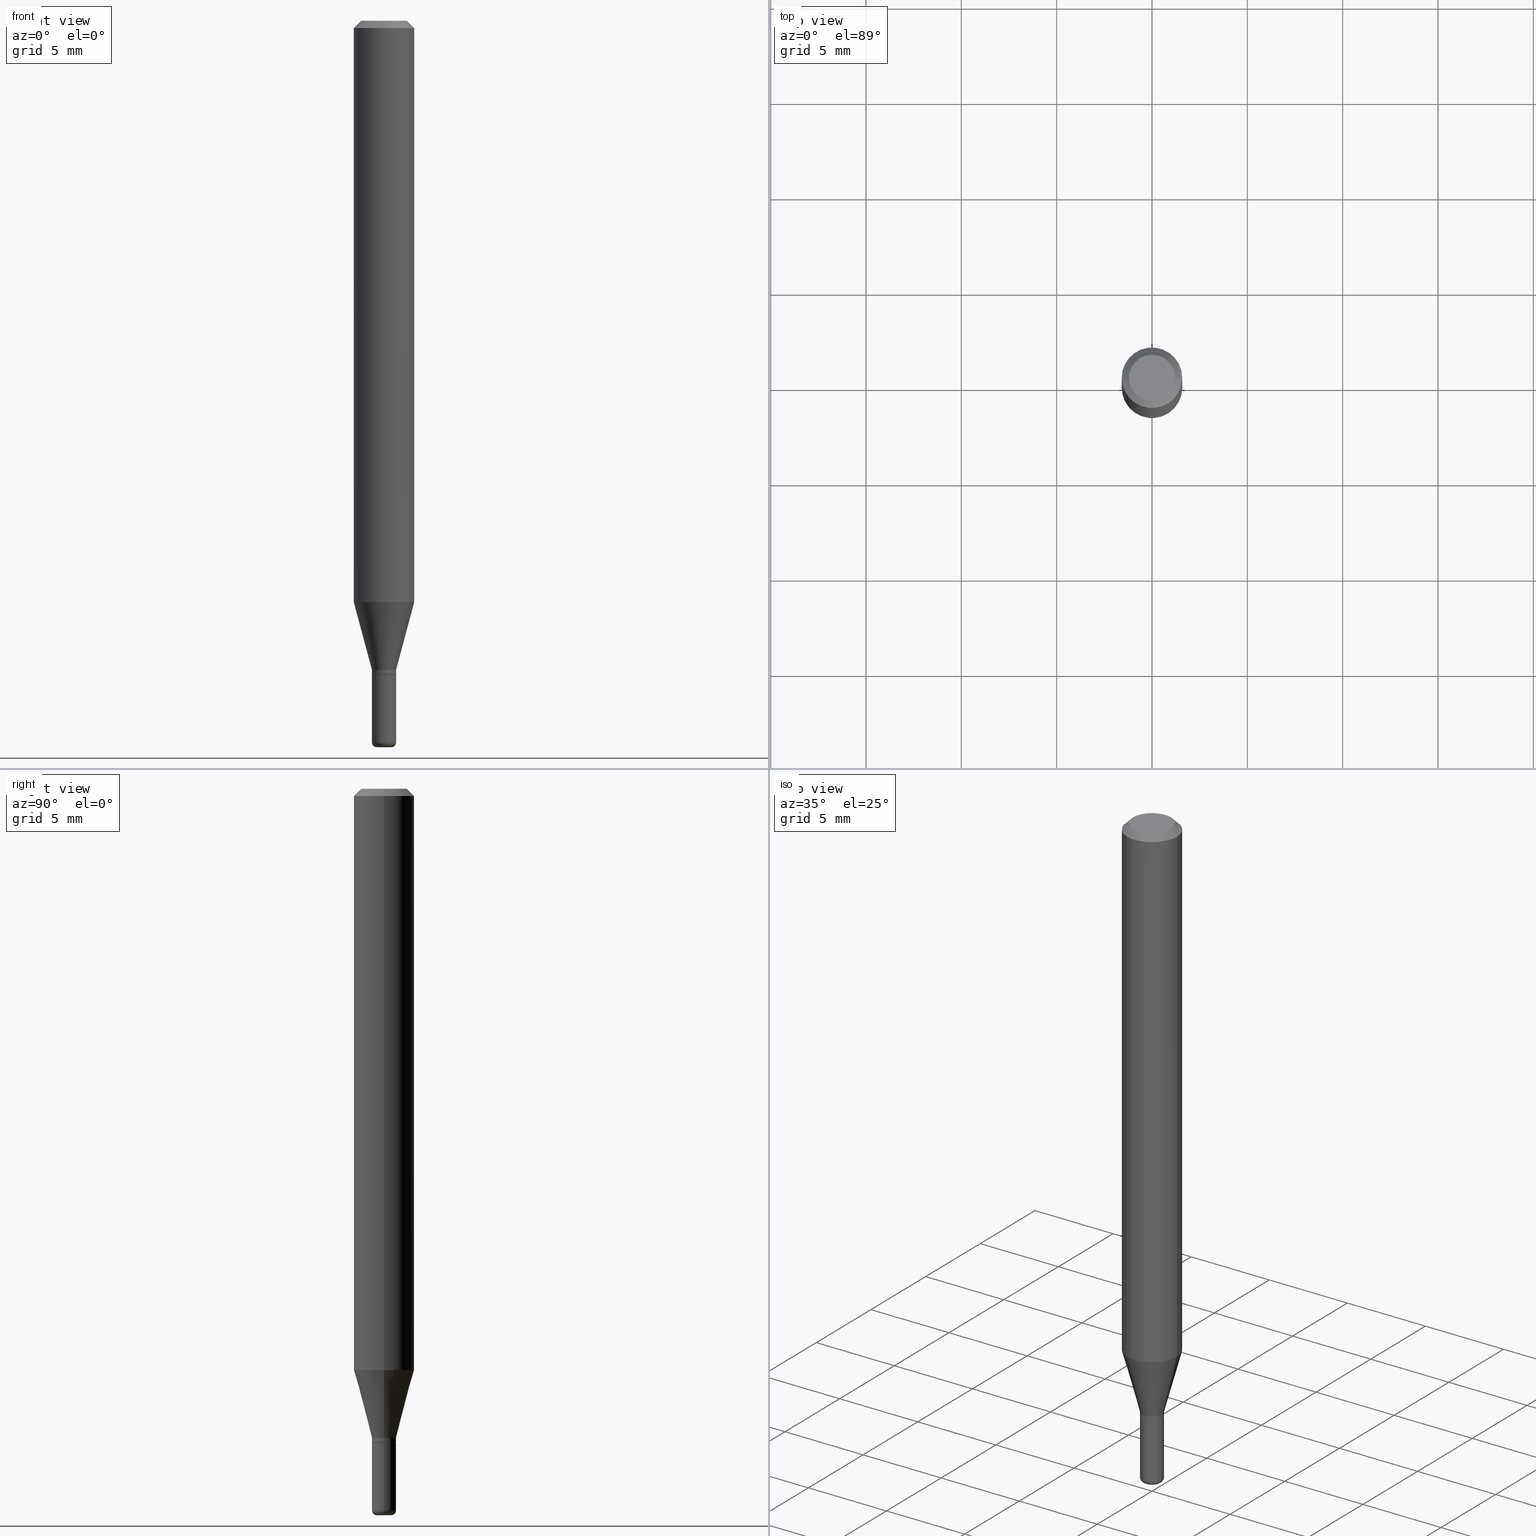
[diagram: canonical four-view strip — front | top / right | iso, engineering-drawing reading convention]
A machine part, canonical four-view strip (front | top / right | iso — engineering-drawing reading convention). The complete STEP part file that produces these views, byte-faithful:
ISO-10303-21;
HEADER;
FILE_DESCRIPTION (( 'STEP AP203' ),
    '1' );
FILE_NAME ('08524.STEP',
    '2024-02-29T19:41:41',
    ( '' ),
    ( '' ),
    'SwSTEP 2.0',
    'SolidWorks 2023',
    '' );
FILE_SCHEMA (( 'CONFIG_CONTROL_DESIGN' ));
ENDSEC;

DATA;
#1 = CARTESIAN_POINT ( 'NONE',  ( -0.04750000000000000749, 3.578768372314221353E-16, 2.731847993664239060E-16 ) ) ;
#2 = EDGE_CURVE ( 'NONE', #167, #292, #369, .T. ) ;
#3 = ORIENTED_EDGE ( 'NONE', *, *, #18, .F. ) ;
#4 = CYLINDRICAL_SURFACE ( 'NONE', #412, 0.02499999999999997363 ) ;
#5 = ORIENTED_EDGE ( 'NONE', *, *, #74, .F. ) ;
#6 = AXIS2_PLACEMENT_3D ( 'NONE', #389, #31, #128 ) ;
#7 = CONICAL_SURFACE ( 'NONE', #455, 0.02449999999999996972, 0.7853981633975507526 ) ;
#8 = CARTESIAN_POINT ( 'NONE',  ( 0.02499999999999997363, -1.745740669421564705E-16, 1.219044193948982547E-30 ) ) ;
#9 = CIRCLE ( 'NONE', #319, 0.01500000000000000465 ) ;
#10 = EDGE_LOOP ( 'NONE', ( #425, #225, #408, #271 ) ) ;
#11 = DIRECTION ( 'NONE',  ( -0.2588190451025205729, 5.211531920934544731E-15, 0.9659258262890682012 ) ) ;
#12 = ORIENTED_EDGE ( 'NONE', *, *, #25, .F. ) ;
#13 =( LENGTH_UNIT ( ) NAMED_UNIT ( * ) SI_UNIT ( $, .METRE. ) );
#14 = CARTESIAN_POINT ( 'NONE',  ( -6.680649051745406845E-45, 9.538196290434862081E-31, 2.731847993664263218E-16 ) ) ;
#15 = CARTESIAN_POINT ( 'NONE',  ( 3.301382888349935078E-29, -4.713499807438246596E-15, -1.350000000000000089 ) ) ;
#16 = CC_DESIGN_SECURITY_CLASSIFICATION ( #205, ( #314 ) ) ;
#17 = ORIENTED_EDGE ( 'NONE', *, *, #41, .T. ) ;
#18 = EDGE_CURVE ( 'NONE', #147, #410, #360, .T. ) ;
#19 = DIRECTION ( 'NONE',  ( 2.445468806185136597E-29, -3.491481338843145583E-15, -1.000000000000000000 ) ) ;
#20 = DIRECTION ( 'NONE',  ( -2.445468806185136877E-29, 3.491481338843145188E-15, 1.000000000000000000 ) ) ;
#21 = EDGE_CURVE ( 'NONE', #147, #363, #498, .T. ) ;
#22 = FACE_OUTER_BOUND ( 'NONE', #220, .T. ) ;
#23 = DIRECTION ( 'NONE',  ( 2.445468806185136597E-29, -3.491481338843145583E-15, -1.000000000000000000 ) ) ;
#24 = EDGE_CURVE ( 'NONE', #292, #185, #58, .T. ) ;
#25 = EDGE_CURVE ( 'NONE', #137, #326, #464, .T. ) ;
#26 = DATE_AND_TIME ( #239, #162 ) ;
#27 = AXIS2_PLACEMENT_3D ( 'NONE', #247, #97, #285 ) ;
#28 = ORIENTED_EDGE ( 'NONE', *, *, #21, .F. ) ;
#29 = CONICAL_SURFACE ( 'NONE', #345, 0.02499999999999996322, 0.2617993877991492968 ) ;
#30 = APPROVAL_DATE_TIME ( #198, #399 ) ;
#31 = DIRECTION ( 'NONE',  ( 2.438088387897960049E-29, -3.491481338843145188E-15, -1.000000000000000000 ) ) ;
#32 = COORDINATED_UNIVERSAL_TIME_OFFSET ( 5, 0, .BEHIND. ) ;
#33 = DIRECTION ( 'NONE',  ( -2.445468806185136597E-29, 3.491481338843145583E-15, 1.000000000000000000 ) ) ;
#34 = APPLICATION_CONTEXT ( 'configuration controlled 3d designs of mechanical parts and assemblies' ) ;
#35 = CONICAL_SURFACE ( 'NONE', #51, 0.02449999999999996972, 0.7853981633975507526 ) ;
#36 = AXIS2_PLACEMENT_3D ( 'NONE', #400, #43, #362 ) ;
#37 = CALENDAR_DATE ( 2024, 29, 2 ) ;
#38 = CARTESIAN_POINT ( 'NONE',  ( 3.301382888349935078E-29, -4.713499807438246596E-15, -1.350000000000000089 ) ) ;
#39 = MANIFOLD_SOLID_BREP ( 'Body-Move/Copy2[2]', #172 ) ;
#40 = CARTESIAN_POINT ( 'NONE',  ( 3.316907271900976589E-16, 0.04750000000000000749, -2.925296391183627249E-17 ) ) ;
#41 = EDGE_CURVE ( 'NONE', #127, #212, #423, .T. ) ;
#42 = ADVANCED_FACE ( 'NONE', ( #66 ), #161, .T. ) ;
#43 = DIRECTION ( 'NONE',  ( -2.445468806185136597E-29, 3.491481338843145583E-15, 1.000000000000000000 ) ) ;
#44 = ORIENTED_EDGE ( 'NONE', *, *, #467, .F. ) ;
#45 = VECTOR ( 'NONE', #263, 39.37007874015748143 ) ;
#46 = CARTESIAN_POINT ( 'NONE',  ( -0.06250000000000000000, -3.745856318565706082E-15, -1.200048094716167135 ) ) ;
#47 = ORIENTED_EDGE ( 'NONE', *, *, #264, .F. ) ;
#48 = CARTESIAN_POINT ( 'NONE',  ( 0.02499999999999996322, -4.853159060991972403E-15, -1.340000000000000080 ) ) ;
#49 = CARTESIAN_POINT ( 'NONE',  ( -0.02499999999999996669, 1.776356839400248098E-16, -1.229733772563724904E-30 ) ) ;
#50 = ORIENTED_EDGE ( 'NONE', *, *, #117, .T. ) ;
#51 = AXIS2_PLACEMENT_3D ( 'NONE', #38, #437, #81 ) ;
#52 = CIRCLE ( 'NONE', #379, 0.02499999999999994588 ) ;
#53 = CARTESIAN_POINT ( 'NONE',  ( 3.276928200288083533E-29, -4.678584994049815735E-15, -1.340000000000000080 ) ) ;
#54 = AXIS2_PLACEMENT_3D ( 'NONE', #318, #150, #350 ) ;
#55 = EDGE_LOOP ( 'NONE', ( #12, #458, #50, #479 ) ) ;
#56 = MANIFOLD_SOLID_BREP ( 'Body-Move/Copy2[1]', #216 ) ;
#57 = CARTESIAN_POINT ( 'NONE',  ( 3.301382888349935078E-29, -4.713499807438246596E-15, -1.350000000000000089 ) ) ;
#58 = LINE ( 'NONE', #465, #214 ) ;
#59 = FACE_OUTER_BOUND ( 'NONE', #306, .T. ) ;
#60 = EDGE_CURVE ( 'NONE', #292, #167, #499, .T. ) ;
#61 = ORIENTED_EDGE ( 'NONE', *, *, #182, .T. ) ;
#62 = DIRECTION ( 'NONE',  ( 1.000000000000000000, -6.982962677686265133E-15, 0.000000000000000000 ) ) ;
#63 = DIRECTION ( 'NONE',  ( -2.445468806185136597E-29, 3.491481338843145583E-15, 1.000000000000000000 ) ) ;
#64 = DIRECTION ( 'NONE',  ( 1.000000000000000000, -6.982962677686254878E-15, 0.000000000000000000 ) ) ;
#65 = EDGE_CURVE ( 'NONE', #185, #371, #195, .T. ) ;
#66 = FACE_OUTER_BOUND ( 'NONE', #55, .T. ) ;
#67 = FACE_OUTER_BOUND ( 'NONE', #169, .T. ) ;
#68 = CARTESIAN_POINT ( 'NONE',  ( 2.934680181550293043E-29, -4.189945528415768698E-15, -1.200048094716167135 ) ) ;
#69 = EDGE_CURVE ( 'NONE', #311, #487, #72, .T. ) ;
#70 = PERSON_AND_ORGANIZATION ( #183, #73 ) ;
#71 = AXIS2_PLACEMENT_3D ( 'NONE', #472, #115, #505 ) ;
#72 = LINE ( 'NONE', #119, #244 ) ;
#73 = ORGANIZATION ( 'UNSPECIFIED', 'UNSPECIFIED', '' ) ;
#74 = EDGE_CURVE ( 'NONE', #494, #141, #9, .T. ) ;
#75 = SECURITY_CLASSIFICATION_LEVEL ( 'unclassified' ) ;
#76 = CARTESIAN_POINT ( 'NONE',  ( 3.643748521215853910E-29, -5.202307194876288105E-15, -1.490000000000000213 ) ) ;
#77 = PERSON_AND_ORGANIZATION ( #183, #73 ) ;
#78 = ADVANCED_FACE ( 'NONE', ( #352 ), #238, .T. ) ;
#79 = DIRECTION ( 'NONE',  ( 1.000000000000000000, -6.982962677686267499E-15, 4.876176775795935793E-29 ) ) ;
#80 = DIRECTION ( 'NONE',  ( 0.000000000000000000, 0.000000000000000000, 1.000000000000000000 ) ) ;
#81 = DIRECTION ( 'NONE',  ( 1.000000000000000000, -6.982962677686282488E-15, 0.000000000000000000 ) ) ;
#82 = VECTOR ( 'NONE', #20, 39.37007874015748143 ) ;
#83 = AXIS2_PLACEMENT_3D ( 'NONE', #53, #132, #165 ) ;
#84 = AXIS2_PLACEMENT_3D ( 'NONE', #76, #431, #120 ) ;
#85 = DATE_AND_TIME ( #502, #361 ) ;
#86 = DESIGN_CONTEXT ( 'detailed design', #321, 'design' ) ;
#87 = FACE_OUTER_BOUND ( 'NONE', #248, .T. ) ;
#88 = DIRECTION ( 'NONE',  ( 1.000000000000000000, -6.982962677686265133E-15, 0.000000000000000000 ) ) ;
#89 = DIRECTION ( 'NONE',  ( -2.445468806185136877E-29, 3.491481338843145188E-15, 1.000000000000000000 ) ) ;
#90 = EDGE_LOOP ( 'NONE', ( #133, #177 ) ) ;
#91 = CIRCLE ( 'NONE', #508, 0.02499999999999996322 ) ;
#92 = DIRECTION ( 'NONE',  ( -2.445468806185136597E-29, 3.491481338843145583E-15, 1.000000000000000000 ) ) ;
#93 = ORIENTED_EDGE ( 'NONE', *, *, #273, .F. ) ;
#94 = DIRECTION ( 'NONE',  ( -6.982962677686266711E-15, -1.000000000000000000, 3.491481338843145583E-15 ) ) ;
#95 = ADVANCED_FACE ( 'NONE', ( #191 ), #316, .F. ) ;
#96 = ORIENTED_EDGE ( 'NONE', *, *, #435, .F. ) ;
#97 = DIRECTION ( 'NONE',  ( -2.445468806185136597E-29, 3.491481338843145583E-15, 1.000000000000000000 ) ) ;
#98 = ORIENTED_EDGE ( 'NONE', *, *, #357, .F. ) ;
#99 = DIRECTION ( 'NONE',  ( 1.000000000000000000, -6.982962677686269866E-15, 4.883557194083113462E-29 ) ) ;
#100 = DIRECTION ( 'NONE',  ( 1.000000000000000000, -6.982962677686262766E-15, 0.000000000000000000 ) ) ;
#101 = DIRECTION ( 'NONE',  ( 1.000000000000000000, -6.982962677686265922E-15, 0.000000000000000000 ) ) ;
#102 = DIRECTION ( 'NONE',  ( -1.000000000000000000, 6.982962677686266711E-15, 0.000000000000000000 ) ) ;
#103 = CC_DESIGN_PERSON_AND_ORGANIZATION_ASSIGNMENT ( #310, #113, ( #314 ) ) ;
#104 = CARTESIAN_POINT ( 'NONE',  ( -0.01500000000000000465, -5.077656054418483766E-15, -1.500000000000000222 ) ) ;
#105 = DIRECTION ( 'NONE',  ( -2.445468806185136597E-29, 3.491481338843145583E-15, 1.000000000000000000 ) ) ;
#106 = ADVANCED_FACE ( 'NONE', ( #193 ), #308, .T. ) ;
#107 = AXIS2_PLACEMENT_3D ( 'NONE', #356, #476, #313 ) ;
#108 =( NAMED_UNIT ( * ) SI_UNIT ( $, .STERADIAN. ) SOLID_ANGLE_UNIT ( ) );
#109 = CIRCLE ( 'NONE', #130, 0.04750000000000000749 ) ;
#110 = ORIENTED_EDGE ( 'NONE', *, *, #131, .T. ) ;
#111 = VERTEX_POINT ( 'NONE', #354 ) ;
#112 = DIRECTION ( 'NONE',  ( -2.445468806185136597E-29, 3.491481338843145583E-15, 1.000000000000000000 ) ) ;
#113 = PERSON_AND_ORGANIZATION_ROLE ( 'design_supplier' ) ;
#114 = CIRCLE ( 'NONE', #71, 0.009999999999999944697 ) ;
#115 = DIRECTION ( 'NONE',  ( 7.105427357601001859E-15, 1.000000000000000000, -3.491481338843145583E-15 ) ) ;
#116 = CIRCLE ( 'NONE', #241, 0.02500000000000000139 ) ;
#117 = EDGE_CURVE ( 'NONE', #371, #185, #328, .T. ) ;
#118 = APPROVAL_DATE_TIME ( #26, #383 ) ;
#119 = CARTESIAN_POINT ( 'NONE',  ( -0.02499999999999997363, 1.776356839400248591E-16, -1.229733772563725079E-30 ) ) ;
#120 = DIRECTION ( 'NONE',  ( 1.000000000000000000, -6.982962677686269866E-15, 4.883557194083113462E-29 ) ) ;
#121 = COORDINATED_UNIVERSAL_TIME_OFFSET ( 5, 0, .BEHIND. ) ;
#122 = CARTESIAN_POINT ( 'NONE',  ( -0.06250000000000000000, -1.677069664399144681E-15, -0.01499999999999970281 ) ) ;
#123 = VECTOR ( 'NONE', #320, 39.37007874015748143 ) ;
#124 = FACE_OUTER_BOUND ( 'NONE', #456, .T. ) ;
#125 = PRODUCT_RELATED_PRODUCT_CATEGORY ( 'detail', '', ( #440 ) ) ;
#126 = CARTESIAN_POINT ( 'NONE',  ( 0.06250000000000000000, -4.364351673553916694E-16, 3.047610484872459871E-30 ) ) ;
#127 = VERTEX_POINT ( 'NONE', #153 ) ;
#128 = DIRECTION ( 'NONE',  ( -1.000000000000000000, 6.982962677686265922E-15, -4.876176775795935793E-29 ) ) ;
#129 = ORIENTED_EDGE ( 'NONE', *, *, #353, .F. ) ;
#130 = AXIS2_PLACEMENT_3D ( 'NONE', #411, #484, #208 ) ;
#131 = EDGE_CURVE ( 'NONE', #494, #311, #114, .T. ) ;
#132 = DIRECTION ( 'NONE',  ( -2.445468806185136597E-29, 3.491481338843145583E-15, 1.000000000000000000 ) ) ;
#133 = ORIENTED_EDGE ( 'NONE', *, *, #407, .T. ) ;
#134 = DIRECTION ( 'NONE',  ( 1.000000000000000000, -6.982962677686274599E-15, 0.000000000000000000 ) ) ;
#135 = ORIENTED_EDGE ( 'NONE', *, *, #24, .T. ) ;
#136 = FACE_OUTER_BOUND ( 'NONE', #288, .T. ) ;
#137 = VERTEX_POINT ( 'NONE', #197 ) ;
#138 = AXIS2_PLACEMENT_3D ( 'NONE', #451, #325, #256 ) ;
#139 = APPROVAL_PERSON_ORGANIZATION ( #70, #194, #187 ) ;
#140 = LINE ( 'NONE', #491, #291 ) ;
#141 = VERTEX_POINT ( 'NONE', #474 ) ;
#142 = DIRECTION ( 'NONE',  ( 1.000000000000000000, -6.982962677686266711E-15, 4.876176775795935793E-29 ) ) ;
#143 = ORIENTED_EDGE ( 'NONE', *, *, #304, .T. ) ;
#144 = LENGTH_MEASURE_WITH_UNIT ( LENGTH_MEASURE( 0.02539999999999999897 ), #13 );
#145 = ORIENTED_EDGE ( 'NONE', *, *, #117, .F. ) ;
#146 = AXIS2_PLACEMENT_3D ( 'NONE', #376, #459, #99 ) ;
#147 = VERTEX_POINT ( 'NONE', #160 ) ;
#148 = PERSON_AND_ORGANIZATION ( #183, #73 ) ;
#149 = ORIENTED_EDGE ( 'NONE', *, *, #336, .T. ) ;
#150 = DIRECTION ( 'NONE',  ( -2.445468806185136597E-29, 3.491481338843145583E-15, 1.000000000000000000 ) ) ;
#151 = PERSON_AND_ORGANIZATION ( #183, #73 ) ;
#152 = LOCAL_TIME ( 14, 41, 41.00000000000000000, #275 ) ;
#153 = CARTESIAN_POINT ( 'NONE',  ( 0.02499999999999997363, -4.886328133710982549E-15, -1.349500000000000144 ) ) ;
#154 = ADVANCED_FACE ( 'NONE', ( #280 ), #35, .T. ) ;
#155 = DIRECTION ( 'NONE',  ( 1.000000000000000000, -6.982962677686265922E-15, 4.876176775795935793E-29 ) ) ;
#156 = COORDINATED_UNIVERSAL_TIME_OFFSET ( 5, 0, .BEHIND. ) ;
#157 = ADVANCED_BREP_SHAPE_REPRESENTATION ( '08524', ( #56, #39, #250 ), #282 ) ;
#158 = FACE_OUTER_BOUND ( 'NONE', #419, .T. ) ;
#159 = ADVANCED_FACE ( 'NONE', ( #158 ), #513, .T. ) ;
#160 = CARTESIAN_POINT ( 'NONE',  ( -0.02449999999999996972, -4.536767610002911089E-15, -1.350000000000000089 ) ) ;
#161 = CONICAL_SURFACE ( 'NONE', #203, 0.06250000000000000000, 0.7853981633974488341 ) ;
#162 = LOCAL_TIME ( 14, 41, 41.00000000000000000, #121 ) ;
#163 = CARTESIAN_POINT ( 'NONE',  ( -0.02499999999999994588, -4.780267817217242146E-15, -1.490000000000000213 ) ) ;
#164 = ORIENTED_EDGE ( 'NONE', *, *, #355, .T. ) ;
#165 = DIRECTION ( 'NONE',  ( 1.000000000000000000, -6.982962677686265133E-15, 0.000000000000000000 ) ) ;
#166 = PRODUCT_DEFINITION_SHAPE ( 'NONE', 'NONE',  #489 ) ;
#167 = VERTEX_POINT ( 'NONE', #199 ) ;
#168 = DIRECTION ( 'NONE',  ( -2.445468806185136597E-29, 3.491481338843145583E-15, 1.000000000000000000 ) ) ;
#169 = EDGE_LOOP ( 'NONE', ( #44, #378, #324, #500 ) ) ;
#170 = AXIS2_PLACEMENT_3D ( 'NONE', #40, #201, #359 ) ;
#171 = AXIS2_PLACEMENT_3D ( 'NONE', #57, #180, #265 ) ;
#172 = CLOSED_SHELL ( 'NONE', ( #78, #447, #42, #394, #190, #377, #480, #358, #200, #270, #154, #159 ) ) ;
#173 = CARTESIAN_POINT ( 'NONE',  ( -0.02499999999999996322, -4.123402814337748307E-15, -1.340000000000000080 ) ) ;
#174 = CARTESIAN_POINT ( 'NONE',  ( 3.668203209277704895E-29, -5.237222008264718177E-15, -1.500000000000000222 ) ) ;
#175 = ORIENTED_EDGE ( 'NONE', *, *, #435, .T. ) ;
#176 = LINE ( 'NONE', #453, #252 ) ;
#177 = ORIENTED_EDGE ( 'NONE', *, *, #243, .T. ) ;
#178 = FACE_OUTER_BOUND ( 'NONE', #294, .T. ) ;
#179 = ORIENTED_EDGE ( 'NONE', *, *, #355, .F. ) ;
#180 = DIRECTION ( 'NONE',  ( -2.445468806185136597E-29, 3.491481338843145583E-15, 1.000000000000000000 ) ) ;
#181 = ORIENTED_EDGE ( 'NONE', *, *, #65, .F. ) ;
#182 = EDGE_CURVE ( 'NONE', #296, #311, #441, .T. ) ;
#183 = PERSON ( 'UNSPECIFIED', 'UNSPECIFIED', 'UNSPECIFIED', ('UNSPECIFIED'), ('UNSPECIFIED'), ('UNSPECIFIED') ) ;
#184 = DIRECTION ( 'NONE',  ( -2.445468806185136597E-29, 3.491481338843145583E-15, 1.000000000000000000 ) ) ;
#185 = VERTEX_POINT ( 'NONE', #122 ) ;
#186 = AXIS2_PLACEMENT_3D ( 'NONE', #290, #94, #134 ) ;
#187 = APPROVAL_ROLE ( '' ) ;
#188 = CIRCLE ( 'NONE', #171, 0.02449999999999996972 ) ;
#189 = ORIENTED_EDGE ( 'NONE', *, *, #273, .T. ) ;
#190 = ADVANCED_FACE ( 'NONE', ( #283 ), #461, .T. ) ;
#191 = FACE_OUTER_BOUND ( 'NONE', #503, .T. ) ;
#192 = DATE_AND_TIME ( #388, #223 ) ;
#193 = FACE_OUTER_BOUND ( 'NONE', #416, .T. ) ;
#194 = APPROVAL ( #473, 'UNSPECIFIED' ) ;
#195 = CIRCLE ( 'NONE', #438, 0.06250000000000000000 ) ;
#196 = AXIS2_PLACEMENT_3D ( 'NONE', #174, #184, #101 ) ;
#197 = CARTESIAN_POINT ( 'NONE',  ( 0.04750000000000000749, -4.035134999187568762E-16, 2.731847993664288856E-16 ) ) ;
#198 = DATE_AND_TIME ( #37, #267 ) ;
#199 = CARTESIAN_POINT ( 'NONE',  ( 0.06250000000000000000, -4.626380695771160368E-15, -1.200048094716167135 ) ) ;
#200 = ADVANCED_FACE ( 'NONE', ( #87 ), #398, .F. ) ;
#201 = DIRECTION ( 'NONE',  ( 2.438088387897960049E-29, -3.491481338843145188E-15, -1.000000000000000000 ) ) ;
#202 = LINE ( 'NONE', #48, #274 ) ;
#203 = AXIS2_PLACEMENT_3D ( 'NONE', #382, #23, #102 ) ;
#204 = ORIENTED_EDGE ( 'NONE', *, *, #304, .F. ) ;
#205 = SECURITY_CLASSIFICATION ( '', '', #75 ) ;
#206 = CARTESIAN_POINT ( 'NONE',  ( 3.643748521215853910E-29, -5.202307194876288105E-15, -1.490000000000000213 ) ) ;
#207 = ORIENTED_EDGE ( 'NONE', *, *, #243, .F. ) ;
#208 = DIRECTION ( 'NONE',  ( 1.000000000000000000, -6.982962677686266711E-15, 4.852736867747365086E-29 ) ) ;
#209 = EDGE_LOOP ( 'NONE', ( #367, #482, #149, #207 ) ) ;
#210 = LINE ( 'NONE', #49, #258 ) ;
#211 = ADVANCED_FACE ( 'NONE', ( #272 ), #427, .F. ) ;
#212 = VERTEX_POINT ( 'NONE', #330 ) ;
#213 = ADVANCED_FACE ( 'NONE', ( #366 ), #4, .T. ) ;
#214 = VECTOR ( 'NONE', #348, 39.37007874015748143 ) ;
#215 = VECTOR ( 'NONE', #477, 39.37007874015748143 ) ;
#216 = CLOSED_SHELL ( 'NONE', ( #106, #213, #211, #259, #495, #95 ) ) ;
#217 = LINE ( 'NONE', #293, #123 ) ;
#218 = ORIENTED_EDGE ( 'NONE', *, *, #24, .F. ) ;
#219 = CYLINDRICAL_SURFACE ( 'NONE', #446, 0.06250000000000000000 ) ;
#220 = EDGE_LOOP ( 'NONE', ( #331, #329, #93, #204 ) ) ;
#221 = DIRECTION ( 'NONE',  ( -2.445468806185136597E-29, 3.491481338843145583E-15, 1.000000000000000000 ) ) ;
#222 = ORIENTED_EDGE ( 'NONE', *, *, #301, .T. ) ;
#223 = LOCAL_TIME ( 14, 41, 41.00000000000000000, #156 ) ;
#224 = EDGE_CURVE ( 'NONE', #141, #296, #344, .T. ) ;
#225 = ORIENTED_EDGE ( 'NONE', *, *, #264, .T. ) ;
#226 = CARTESIAN_POINT ( 'NONE',  ( 0.06250000000000000000, -4.888073874380378612E-16, -0.01499999999999970281 ) ) ;
#227 = ORIENTED_EDGE ( 'NONE', *, *, #224, .F. ) ;
#228 = CARTESIAN_POINT ( 'NONE',  ( 0.000000000000000000, 0.000000000000000000, 0.000000000000000000 ) ) ;
#229 = ORIENTED_EDGE ( 'NONE', *, *, #69, .T. ) ;
#230 = EDGE_CURVE ( 'NONE', #363, #268, #210, .T. ) ;
#231 = AXIS2_PLACEMENT_3D ( 'NONE', #309, #420, #340 ) ;
#232 = PERSON_AND_ORGANIZATION_ROLE ( 'creator' ) ;
#233 = AXIS2_PLACEMENT_3D ( 'NONE', #496, #19, #418 ) ;
#234 = CARTESIAN_POINT ( 'NONE',  ( 0.000000000000000000, 0.000000000000000000, 0.000000000000000000 ) ) ;
#235 = APPROVAL_ROLE ( '' ) ;
#236 = DIRECTION ( 'NONE',  ( -2.445468806185136877E-29, 3.491481338843145188E-15, 1.000000000000000000 ) ) ;
#237 = DATE_TIME_ROLE ( 'classification_date' ) ;
#238 = CYLINDRICAL_SURFACE ( 'NONE', #284, 0.02499999999999996669 ) ;
#239 = CALENDAR_DATE ( 2024, 29, 2 ) ;
#240 = AXIS2_PLACEMENT_3D ( 'NONE', #442, #277, #246 ) ;
#241 = AXIS2_PLACEMENT_3D ( 'NONE', #488, #384, #64 ) ;
#242 = DIRECTION ( 'NONE',  ( 1.000000000000000000, -6.982962677686267499E-15, 4.876176775795935793E-29 ) ) ;
#243 = EDGE_CURVE ( 'NONE', #487, #111, #514, .T. ) ;
#244 = VECTOR ( 'NONE', #236, 39.37007874015748143 ) ;
#245 = DATE_TIME_ROLE ( 'creation_date' ) ;
#246 = DIRECTION ( 'NONE',  ( 1.000000000000000000, -6.982962677686265133E-15, 0.000000000000000000 ) ) ;
#247 = CARTESIAN_POINT ( 'NONE',  ( 3.301382888349935078E-29, -4.713499807438246596E-15, -1.350000000000000089 ) ) ;
#248 = EDGE_LOOP ( 'NONE', ( #518, #297 ) ) ;
#249 = DIRECTION ( 'NONE',  ( -2.445468806185136877E-29, 3.491481338843145188E-15, 1.000000000000000000 ) ) ;
#250 = AXIS2_PLACEMENT_3D ( 'NONE', #504, #80, #351 ) ;
#251 = EDGE_LOOP ( 'NONE', ( #47, #222, #300, #485 ) ) ;
#252 = VECTOR ( 'NONE', #262, 39.37007874015748143 ) ;
#253 = DIRECTION ( 'NONE',  ( 1.000000000000000000, -6.982962677686261977E-15, 0.000000000000000000 ) ) ;
#254 = PLANE ( 'NONE',  #138 ) ;
#255 = ORIENTED_EDGE ( 'NONE', *, *, #224, .T. ) ;
#256 = DIRECTION ( 'NONE',  ( 1.000000000000000000, -6.982962677686265922E-15, 4.876176775795935793E-29 ) ) ;
#257 = ORIENTED_EDGE ( 'NONE', *, *, #353, .T. ) ;
#258 = VECTOR ( 'NONE', #249, 39.37007874015748143 ) ;
#259 = ADVANCED_FACE ( 'NONE', ( #448 ), #295, .T. ) ;
#260 = CARTESIAN_POINT ( 'NONE',  ( 0.02449999999999996972, -4.884582393041560256E-15, -1.350000000000000089 ) ) ;
#261 = CARTESIAN_POINT ( 'NONE',  ( -0.02449999999999996972, -4.539416837177022290E-15, -1.350000000000000089 ) ) ;
#262 = DIRECTION ( 'NONE',  ( 0.7071067811865479058, -7.319954787623257623E-15, -0.7071067811865471286 ) ) ;
#263 = DIRECTION ( 'NONE',  ( -0.7071067811866199593, 7.493145998870616062E-15, 0.7071067811864750752 ) ) ;
#264 = EDGE_CURVE ( 'NONE', #268, #292, #372, .T. ) ;
#265 = DIRECTION ( 'NONE',  ( 1.000000000000000000, -6.982962677686282488E-15, 0.000000000000000000 ) ) ;
#266 = ORIENTED_EDGE ( 'NONE', *, *, #18, .T. ) ;
#267 = LOCAL_TIME ( 14, 41, 41.00000000000000000, #32 ) ;
#268 = VERTEX_POINT ( 'NONE', #173 ) ;
#269 = CYLINDRICAL_SURFACE ( 'NONE', #463, 0.06250000000000000000 ) ;
#270 = ADVANCED_FACE ( 'NONE', ( #124 ), #254, .F. ) ;
#271 = ORIENTED_EDGE ( 'NONE', *, *, #286, .F. ) ;
#272 = FACE_OUTER_BOUND ( 'NONE', #90, .T. ) ;
#273 = EDGE_CURVE ( 'NONE', #127, #363, #428, .T. ) ;
#274 = VECTOR ( 'NONE', #403, 39.37007874015748854 ) ;
#275 = COORDINATED_UNIVERSAL_TIME_OFFSET ( 5, 0, .BEHIND. ) ;
#276 = CIRCLE ( 'NONE', #36, 0.02499999999999997363 ) ;
#277 = DIRECTION ( 'NONE',  ( -2.445468806185136597E-29, 3.491481338843145583E-15, 1.000000000000000000 ) ) ;
#278 = UNCERTAINTY_MEASURE_WITH_UNIT (LENGTH_MEASURE( 1.000000000000000082E-05 ), #422, 'distance_accuracy_value', 'NONE');
#279 = DIRECTION ( 'NONE',  ( -2.445468806185136597E-29, 3.491481338843145583E-15, 1.000000000000000000 ) ) ;
#280 = FACE_OUTER_BOUND ( 'NONE', #414, .T. ) ;
#281 = COORDINATED_UNIVERSAL_TIME_OFFSET ( 5, 0, .BEHIND. ) ;
#282 =( GEOMETRIC_REPRESENTATION_CONTEXT ( 3 ) GLOBAL_UNCERTAINTY_ASSIGNED_CONTEXT ( ( #278 ) ) GLOBAL_UNIT_ASSIGNED_CONTEXT ( ( #422, #305, #108 ) ) REPRESENTATION_CONTEXT ( 'NONE', 'WORKASPACE' ) );
#283 = FACE_OUTER_BOUND ( 'NONE', #10, .T. ) ;
#284 = AXIS2_PLACEMENT_3D ( 'NONE', #317, #33, #79 ) ;
#285 = DIRECTION ( 'NONE',  ( 1.000000000000000000, -6.982962677686254878E-15, 0.000000000000000000 ) ) ;
#286 = EDGE_CURVE ( 'NONE', #212, #167, #202, .T. ) ;
#287 = LINE ( 'NONE', #8, #215 ) ;
#288 = EDGE_LOOP ( 'NONE', ( #218, #343, #164, #181 ) ) ;
#289 = EDGE_CURVE ( 'NONE', #326, #137, #109, .T. ) ;
#290 = CARTESIAN_POINT ( 'NONE',  ( 0.01500000000000000291, -5.307051635041582264E-15, -1.490000000000000213 ) ) ;
#291 = VECTOR ( 'NONE', #299, 39.37007874015748143 ) ;
#292 = VERTEX_POINT ( 'NONE', #46 ) ;
#293 = CARTESIAN_POINT ( 'NONE',  ( 0.02449999999999996972, -4.884582393041560256E-15, -1.350000000000000089 ) ) ;
#294 = EDGE_LOOP ( 'NONE', ( #445, #135, #145, #179 ) ) ;
#295 = CYLINDRICAL_SURFACE ( 'NONE', #298, 0.02499999999999997363 ) ;
#296 = VERTEX_POINT ( 'NONE', #478 ) ;
#297 = ORIENTED_EDGE ( 'NONE', *, *, #25, .T. ) ;
#298 = AXIS2_PLACEMENT_3D ( 'NONE', #327, #444, #409 ) ;
#299 = DIRECTION ( 'NONE',  ( -0.7071067811865479058, 2.468850131082261005E-15, -0.7071067811865471286 ) ) ;
#300 = ORIENTED_EDGE ( 'NONE', *, *, #286, .T. ) ;
#301 = EDGE_CURVE ( 'NONE', #268, #212, #307, .T. ) ;
#302 = CARTESIAN_POINT ( 'NONE',  ( -0.02500000000000000139, -4.780267817217242146E-15, -1.350000000000000089 ) ) ;
#303 = CARTESIAN_POINT ( 'NONE',  ( 2.934680181550293043E-29, -4.189945528415768698E-15, -1.200048094716167135 ) ) ;
#304 = EDGE_CURVE ( 'NONE', #410, #127, #217, .T. ) ;
#305 =( NAMED_UNIT ( * ) PLANE_ANGLE_UNIT ( ) SI_UNIT ( $, .RADIAN. ) );
#306 = EDGE_LOOP ( 'NONE', ( #405, #375, #255, #98 ) ) ;
#307 = CIRCLE ( 'NONE', #83, 0.02499999999999996322 ) ;
#308 = TOROIDAL_SURFACE ( 'NONE', #84, 0.01500000000000000291, 0.009999999999999946432 ) ;
#309 = CARTESIAN_POINT ( 'NONE',  ( 3.301382888349935078E-29, -4.713499807438246596E-15, -1.350000000000000089 ) ) ;
#310 = PERSON_AND_ORGANIZATION ( #183, #73 ) ;
#311 = VERTEX_POINT ( 'NONE', #163 ) ;
#312 = APPLICATION_PROTOCOL_DEFINITION ( 'international standard', 'config_control_design', 1994, #321 ) ;
#313 = DIRECTION ( 'NONE',  ( 1.000000000000000000, -6.982962677686269866E-15, 0.000000000000000000 ) ) ;
#314 = PRODUCT_DEFINITION_FORMATION_WITH_SPECIFIED_SOURCE ( 'ANY', '', #440, .NOT_KNOWN. ) ;
#315 = PERSON_AND_ORGANIZATION_ROLE ( 'classification_officer' ) ;
#316 = PLANE ( 'NONE',  #335 ) ;
#317 = CARTESIAN_POINT ( 'NONE',  ( 0.000000000000000000, 0.000000000000000000, 0.000000000000000000 ) ) ;
#318 = CARTESIAN_POINT ( 'NONE',  ( 3.668203209277632395E-31, -5.237222008264614861E-17, -0.01499999999999970281 ) ) ;
#319 = AXIS2_PLACEMENT_3D ( 'NONE', #510, #393, #391 ) ;
#320 = DIRECTION ( 'NONE',  ( 0.7071067811866199593, -2.468850131083015945E-15, 0.7071067811864750752 ) ) ;
#321 = APPLICATION_CONTEXT ( 'configuration controlled 3d designs of mechanical parts and assemblies' ) ;
#322 = CARTESIAN_POINT ( 'NONE',  ( -0.02499999999999996322, -4.500949310109790531E-15, -1.340000000000000080 ) ) ;
#323 = CC_DESIGN_PERSON_AND_ORGANIZATION_ASSIGNMENT ( #77, #436, ( #489 ) ) ;
#324 = ORIENTED_EDGE ( 'NONE', *, *, #417, .T. ) ;
#325 = DIRECTION ( 'NONE',  ( -2.438088387897960049E-29, 3.491481338843145188E-15, 1.000000000000000000 ) ) ;
#326 = VERTEX_POINT ( 'NONE', #1 ) ;
#327 = CARTESIAN_POINT ( 'NONE',  ( 0.000000000000000000, 0.000000000000000000, 0.000000000000000000 ) ) ;
#328 = CIRCLE ( 'NONE', #54, 0.06250000000000000000 ) ;
#329 = ORIENTED_EDGE ( 'NONE', *, *, #21, .T. ) ;
#330 = CARTESIAN_POINT ( 'NONE',  ( 0.02499999999999996322, -4.853159060991972403E-15, -1.340000000000000080 ) ) ;
#331 = ORIENTED_EDGE ( 'NONE', *, *, #517, .T. ) ;
#332 = DIRECTION ( 'NONE',  ( -2.445468806185136597E-29, 3.491481338843145583E-15, 1.000000000000000000 ) ) ;
#333 = CARTESIAN_POINT ( 'NONE',  ( -0.02499999999999997363, -4.534118382828799888E-15, -1.349500000000000144 ) ) ;
#334 = DIRECTION ( 'NONE',  ( 1.000000000000000000, -6.982962677686266711E-15, 4.852736867747365086E-29 ) ) ;
#335 = AXIS2_PLACEMENT_3D ( 'NONE', #507, #466, #155 ) ;
#336 = EDGE_CURVE ( 'NONE', #296, #111, #287, .T. ) ;
#337 = DIRECTION ( 'NONE',  ( -2.445468806185136597E-29, 3.491481338843145583E-15, 1.000000000000000000 ) ) ;
#338 = ORIENTED_EDGE ( 'NONE', *, *, #407, .F. ) ;
#339 = CC_DESIGN_DATE_AND_TIME_ASSIGNMENT ( #192, #237, ( #205 ) ) ;
#340 = DIRECTION ( 'NONE',  ( 1.000000000000000000, -6.982962677686282488E-15, 0.000000000000000000 ) ) ;
#341 = EDGE_CURVE ( 'NONE', #212, #268, #91, .T. ) ;
#342 = DIRECTION ( 'NONE',  ( 1.000000000000000000, -6.982962677686282488E-15, 0.000000000000000000 ) ) ;
#343 = ORIENTED_EDGE ( 'NONE', *, *, #60, .T. ) ;
#344 = CIRCLE ( 'NONE', #186, 0.009999999999999944697 ) ;
#345 = AXIS2_PLACEMENT_3D ( 'NONE', #424, #221, #62 ) ;
#346 = CC_DESIGN_PERSON_AND_ORGANIZATION_ASSIGNMENT ( #430, #506, ( #440 ) ) ;
#347 = AXIS2_PLACEMENT_3D ( 'NONE', #234, #112, #242 ) ;
#348 = DIRECTION ( 'NONE',  ( -2.445468806185136877E-29, 3.491481338843145188E-15, 1.000000000000000000 ) ) ;
#349 = CALENDAR_DATE ( 2024, 29, 2 ) ;
#350 = DIRECTION ( 'NONE',  ( 1.000000000000000000, -6.982962677686266711E-15, 0.000000000000000000 ) ) ;
#351 = DIRECTION ( 'NONE',  ( 1.000000000000000000, 0.000000000000000000, 0.000000000000000000 ) ) ;
#352 = FACE_OUTER_BOUND ( 'NONE', #385, .T. ) ;
#353 = EDGE_CURVE ( 'NONE', #363, #127, #276, .T. ) ;
#354 = CARTESIAN_POINT ( 'NONE',  ( 0.02500000000000000139, -4.888073874380403263E-15, -1.350000000000000089 ) ) ;
#355 = EDGE_CURVE ( 'NONE', #167, #371, #516, .T. ) ;
#356 = CARTESIAN_POINT ( 'NONE',  ( 3.643748521215853910E-29, -5.202307194876288105E-15, -1.490000000000000213 ) ) ;
#357 = EDGE_CURVE ( 'NONE', #311, #296, #52, .T. ) ;
#358 = ADVANCED_FACE ( 'NONE', ( #67 ), #395, .T. ) ;
#359 = DIRECTION ( 'NONE',  ( -1.000000000000000000, 6.982962677686265922E-15, -4.876176775795935793E-29 ) ) ;
#360 = CIRCLE ( 'NONE', #231, 0.02449999999999996972 ) ;
#361 = LOCAL_TIME ( 14, 41, 41.00000000000000000, #281 ) ;
#362 = DIRECTION ( 'NONE',  ( 1.000000000000000000, -6.982962677686261977E-15, 0.000000000000000000 ) ) ;
#363 = VERTEX_POINT ( 'NONE', #333 ) ;
#364 = DIRECTION ( 'NONE',  ( -2.445468806185136597E-29, 3.491481338843145583E-15, 1.000000000000000000 ) ) ;
#365 = ORIENTED_EDGE ( 'NONE', *, *, #182, .F. ) ;
#366 = FACE_OUTER_BOUND ( 'NONE', #497, .T. ) ;
#367 = ORIENTED_EDGE ( 'NONE', *, *, #69, .F. ) ;
#368 = CARTESIAN_POINT ( 'NONE',  ( 3.300160153946842277E-29, -4.711754066768825092E-15, -1.349500000000000144 ) ) ;
#369 = CIRCLE ( 'NONE', #501, 0.06250000000000000000 ) ;
#370 = CIRCLE ( 'NONE', #196, 0.01500000000000000465 ) ;
#371 = VERTEX_POINT ( 'NONE', #226 ) ;
#372 = LINE ( 'NONE', #322, #386 ) ;
#373 = ORIENTED_EDGE ( 'NONE', *, *, #336, .F. ) ;
#374 = DIRECTION ( 'NONE',  ( 1.000000000000000000, -6.982962677686266711E-15, 4.876176775795935793E-29 ) ) ;
#375 = ORIENTED_EDGE ( 'NONE', *, *, #74, .T. ) ;
#376 = CARTESIAN_POINT ( 'NONE',  ( 3.643748521215853910E-29, -5.202307194876288105E-15, -1.490000000000000213 ) ) ;
#377 = ADVANCED_FACE ( 'NONE', ( #457 ), #29, .T. ) ;
#378 = ORIENTED_EDGE ( 'NONE', *, *, #289, .F. ) ;
#379 = AXIS2_PLACEMENT_3D ( 'NONE', #206, #364, #481 ) ;
#380 = DIRECTION ( 'NONE',  ( -2.445468806185136597E-29, 3.491481338843145583E-15, 1.000000000000000000 ) ) ;
#381 = CARTESIAN_POINT ( 'NONE',  ( 0.02499999999999996669, -1.745740669421564459E-16, 1.219044193948982372E-30 ) ) ;
#382 = CARTESIAN_POINT ( 'NONE',  ( 3.668203209277632395E-31, -5.237222008264614861E-17, -0.01499999999999970281 ) ) ;
#383 = APPROVAL ( #439, 'UNSPECIFIED' ) ;
#384 = DIRECTION ( 'NONE',  ( -2.445468806185136597E-29, 3.491481338843145583E-15, 1.000000000000000000 ) ) ;
#385 = EDGE_LOOP ( 'NONE', ( #189, #462, #452, #460 ) ) ;
#386 = VECTOR ( 'NONE', #11, 39.37007874015748854 ) ;
#387 = APPROVAL_PERSON_ORGANIZATION ( #151, #383, #390 ) ;
#388 = CALENDAR_DATE ( 2024, 29, 2 ) ;
#389 = CARTESIAN_POINT ( 'NONE',  ( 1.745740669421896767E-16, 0.02499999999999528988, -1.350000000000000089 ) ) ;
#390 = APPROVAL_ROLE ( '' ) ;
#391 = DIRECTION ( 'NONE',  ( 1.000000000000000000, -6.982962677686265922E-15, 0.000000000000000000 ) ) ;
#392 = APPROVAL_STATUS ( 'not_yet_approved' ) ;
#393 = DIRECTION ( 'NONE',  ( -2.445468806185136597E-29, 3.491481338843145583E-15, 1.000000000000000000 ) ) ;
#394 = ADVANCED_FACE ( 'NONE', ( #178 ), #269, .T. ) ;
#395 = CONICAL_SURFACE ( 'NONE', #233, 0.06250000000000000000, 0.7853981633974488341 ) ;
#396 = APPLICATION_PROTOCOL_DEFINITION ( 'international standard', 'config_control_design', 1994, #34 ) ;
#397 = DIRECTION ( 'NONE',  ( -2.445468806185136597E-29, 3.491481338843145583E-15, 1.000000000000000000 ) ) ;
#398 = PLANE ( 'NONE',  #170 ) ;
#399 = APPROVAL ( #392, 'UNSPECIFIED' ) ;
#400 = CARTESIAN_POINT ( 'NONE',  ( 3.300160153946842277E-29, -4.711754066768825092E-15, -1.349500000000000144 ) ) ;
#401 = ORIENTED_EDGE ( 'NONE', *, *, #230, .F. ) ;
#402 = APPROVAL_PERSON_ORGANIZATION ( #509, #399, #235 ) ;
#403 = DIRECTION ( 'NONE',  ( 0.2588190451025205729, 1.565188264969627490E-15, 0.9659258262890682012 ) ) ;
#404 = DIMENSIONAL_EXPONENTS ( 1.000000000000000000, 0.000000000000000000, 0.000000000000000000, 0.000000000000000000, 0.000000000000000000, 0.000000000000000000, 0.000000000000000000 ) ;
#405 = ORIENTED_EDGE ( 'NONE', *, *, #131, .F. ) ;
#406 = DIRECTION ( 'NONE',  ( 1.000000000000000000, -6.982962677686265922E-15, 4.876176775795935232E-29 ) ) ;
#407 = EDGE_CURVE ( 'NONE', #111, #487, #116, .T. ) ;
#408 = ORIENTED_EDGE ( 'NONE', *, *, #2, .F. ) ;
#409 = DIRECTION ( 'NONE',  ( 1.000000000000000000, -6.982962677686265922E-15, 4.876176775795935232E-29 ) ) ;
#410 = VERTEX_POINT ( 'NONE', #260 ) ;
#411 = CARTESIAN_POINT ( 'NONE',  ( -6.680649051745406845E-45, 9.538196290434862081E-31, 2.731847993664263218E-16 ) ) ;
#412 = AXIS2_PLACEMENT_3D ( 'NONE', #486, #168, #406 ) ;
#413 = TOROIDAL_SURFACE ( 'NONE', #146, 0.01500000000000000291, 0.009999999999999946432 ) ;
#414 = EDGE_LOOP ( 'NONE', ( #28, #266, #143, #129 ) ) ;
#415 = CARTESIAN_POINT ( 'NONE',  ( 0.000000000000000000, 0.000000000000000000, 0.000000000000000000 ) ) ;
#416 = EDGE_LOOP ( 'NONE', ( #175, #110, #365, #227 ) ) ;
#417 = EDGE_CURVE ( 'NONE', #326, #185, #140, .T. ) ;
#418 = DIRECTION ( 'NONE',  ( -1.000000000000000000, 6.982962677686266711E-15, 0.000000000000000000 ) ) ;
#419 = EDGE_LOOP ( 'NONE', ( #401, #257, #17, #490 ) ) ;
#420 = DIRECTION ( 'NONE',  ( -2.445468806185136597E-29, 3.491481338843145583E-15, 1.000000000000000000 ) ) ;
#421 = VECTOR ( 'NONE', #89, 39.37007874015748143 ) ;
#422 =( CONVERSION_BASED_UNIT ( 'INCH', #144 ) LENGTH_UNIT ( ) NAMED_UNIT ( #404 ) );
#423 = LINE ( 'NONE', #381, #82 ) ;
#424 = CARTESIAN_POINT ( 'NONE',  ( 3.276928200288083533E-29, -4.678584994049815735E-15, -1.340000000000000080 ) ) ;
#425 = ORIENTED_EDGE ( 'NONE', *, *, #341, .T. ) ;
#426 = APPROVAL_DATE_TIME ( #468, #194 ) ;
#427 = PLANE ( 'NONE',  #6 ) ;
#428 = CIRCLE ( 'NONE', #492, 0.02499999999999997363 ) ;
#429 = CC_DESIGN_APPROVAL ( #194, ( #314 ) ) ;
#430 = PERSON_AND_ORGANIZATION ( #183, #73 ) ;
#431 = DIRECTION ( 'NONE',  ( -2.445468806185136597E-29, 3.491481338843145583E-15, 1.000000000000000000 ) ) ;
#432 = CC_DESIGN_PERSON_AND_ORGANIZATION_ASSIGNMENT ( #433, #315, ( #205 ) ) ;
#433 = PERSON_AND_ORGANIZATION ( #183, #73 ) ;
#434 = DIRECTION ( 'NONE',  ( 1.000000000000000000, -6.982962677686266711E-15, 0.000000000000000000 ) ) ;
#435 = EDGE_CURVE ( 'NONE', #141, #494, #370, .T. ) ;
#436 = PERSON_AND_ORGANIZATION_ROLE ( 'creator' ) ;
#437 = DIRECTION ( 'NONE',  ( -2.445468806185136597E-29, 3.491481338843145583E-15, 1.000000000000000000 ) ) ;
#438 = AXIS2_PLACEMENT_3D ( 'NONE', #512, #279, #434 ) ;
#439 = APPROVAL_STATUS ( 'not_yet_approved' ) ;
#440 = PRODUCT ( '08524', '08524', '', ( #475 ) ) ;
#441 = CIRCLE ( 'NONE', #107, 0.02499999999999994588 ) ;
#442 = CARTESIAN_POINT ( 'NONE',  ( 3.276928200288083533E-29, -4.678584994049815735E-15, -1.340000000000000080 ) ) ;
#443 = DIRECTION ( 'NONE',  ( -2.445468806185136597E-29, 3.491481338843145583E-15, 1.000000000000000000 ) ) ;
#444 = DIRECTION ( 'NONE',  ( -2.445468806185136597E-29, 3.491481338843145583E-15, 1.000000000000000000 ) ) ;
#445 = ORIENTED_EDGE ( 'NONE', *, *, #2, .T. ) ;
#446 = AXIS2_PLACEMENT_3D ( 'NONE', #415, #380, #142 ) ;
#447 = ADVANCED_FACE ( 'NONE', ( #22 ), #7, .T. ) ;
#448 = FACE_OUTER_BOUND ( 'NONE', #209, .T. ) ;
#449 = ORIENTED_EDGE ( 'NONE', *, *, #517, .F. ) ;
#450 = CARTESIAN_POINT ( 'NONE',  ( 3.276928200288083533E-29, -4.678584994049815735E-15, -1.340000000000000080 ) ) ;
#451 = CARTESIAN_POINT ( 'NONE',  ( 3.301382888349935078E-29, -4.713499807438246596E-15, -1.350000000000000089 ) ) ;
#452 = ORIENTED_EDGE ( 'NONE', *, *, #341, .F. ) ;
#453 = CARTESIAN_POINT ( 'NONE',  ( 0.06250000000000000000, -4.811533449433669144E-16, -0.01499999999999970281 ) ) ;
#454 = AXIS2_PLACEMENT_3D ( 'NONE', #68, #397, #469 ) ;
#455 = AXIS2_PLACEMENT_3D ( 'NONE', #15, #332, #342 ) ;
#456 = EDGE_LOOP ( 'NONE', ( #449, #3 ) ) ;
#457 = FACE_OUTER_BOUND ( 'NONE', #251, .T. ) ;
#458 = ORIENTED_EDGE ( 'NONE', *, *, #467, .T. ) ;
#459 = DIRECTION ( 'NONE',  ( -2.445468806185136597E-29, 3.491481338843145583E-15, 1.000000000000000000 ) ) ;
#460 = ORIENTED_EDGE ( 'NONE', *, *, #41, .F. ) ;
#461 = CONICAL_SURFACE ( 'NONE', #240, 0.02499999999999996322, 0.2617993877991492968 ) ;
#462 = ORIENTED_EDGE ( 'NONE', *, *, #230, .T. ) ;
#463 = AXIS2_PLACEMENT_3D ( 'NONE', #228, #337, #374 ) ;
#464 = CIRCLE ( 'NONE', #483, 0.04750000000000000749 ) ;
#465 = CARTESIAN_POINT ( 'NONE',  ( -0.06250000000000000000, 4.440892098500626162E-16, -3.074334431409316114E-30 ) ) ;
#466 = DIRECTION ( 'NONE',  ( -2.438088387897960049E-29, 3.491481338843145188E-15, 1.000000000000000000 ) ) ;
#467 = EDGE_CURVE ( 'NONE', #137, #371, #176, .T. ) ;
#468 = DATE_AND_TIME ( #349, #152 ) ;
#469 = DIRECTION ( 'NONE',  ( 1.000000000000000000, -6.982962677686262766E-15, 0.000000000000000000 ) ) ;
#470 = CC_DESIGN_PERSON_AND_ORGANIZATION_ASSIGNMENT ( #148, #232, ( #314 ) ) ;
#471 = SHAPE_DEFINITION_REPRESENTATION ( #166, #157 ) ;
#472 = CARTESIAN_POINT ( 'NONE',  ( -0.01500000000000000291, -5.095725784512272983E-15, -1.490000000000000213 ) ) ;
#473 = APPROVAL_STATUS ( 'not_yet_approved' ) ;
#474 = CARTESIAN_POINT ( 'NONE',  ( 0.01500000000000000465, -5.341966448430012335E-15, -1.500000000000000222 ) ) ;
#475 = MECHANICAL_CONTEXT ( 'NONE', #34, 'mechanical' ) ;
#476 = DIRECTION ( 'NONE',  ( -2.445468806185136597E-29, 3.491481338843145583E-15, 1.000000000000000000 ) ) ;
#477 = DIRECTION ( 'NONE',  ( -2.445468806185136877E-29, 3.491481338843145188E-15, 1.000000000000000000 ) ) ;
#478 = CARTESIAN_POINT ( 'NONE',  ( 0.02499999999999994588, -5.376881261818443984E-15, -1.490000000000000213 ) ) ;
#479 = ORIENTED_EDGE ( 'NONE', *, *, #417, .F. ) ;
#480 = ADVANCED_FACE ( 'NONE', ( #136 ), #219, .T. ) ;
#481 = DIRECTION ( 'NONE',  ( 1.000000000000000000, -6.982962677686269866E-15, 0.000000000000000000 ) ) ;
#482 = ORIENTED_EDGE ( 'NONE', *, *, #357, .T. ) ;
#483 = AXIS2_PLACEMENT_3D ( 'NONE', #14, #63, #334 ) ;
#484 = DIRECTION ( 'NONE',  ( -2.445468806185136597E-29, 3.491481338843145583E-15, 1.000000000000000000 ) ) ;
#485 = ORIENTED_EDGE ( 'NONE', *, *, #60, .F. ) ;
#486 = CARTESIAN_POINT ( 'NONE',  ( 0.000000000000000000, 0.000000000000000000, 0.000000000000000000 ) ) ;
#487 = VERTEX_POINT ( 'NONE', #302 ) ;
#488 = CARTESIAN_POINT ( 'NONE',  ( 3.301382888349935078E-29, -4.713499807438246596E-15, -1.350000000000000089 ) ) ;
#489 = PRODUCT_DEFINITION ( 'UNKNOWN', '', #314, #86 ) ;
#490 = ORIENTED_EDGE ( 'NONE', *, *, #301, .F. ) ;
#491 = CARTESIAN_POINT ( 'NONE',  ( -0.06250000000000000000, 3.840629472727455270E-16, -0.01499999999999970281 ) ) ;
#492 = AXIS2_PLACEMENT_3D ( 'NONE', #368, #92, #253 ) ;
#493 = CC_DESIGN_APPROVAL ( #399, ( #205 ) ) ;
#494 = VERTEX_POINT ( 'NONE', #104 ) ;
#495 = ADVANCED_FACE ( 'NONE', ( #59 ), #413, .T. ) ;
#496 = CARTESIAN_POINT ( 'NONE',  ( 3.668203209277632395E-31, -5.237222008264614861E-17, -0.01499999999999970281 ) ) ;
#497 = EDGE_LOOP ( 'NONE', ( #61, #229, #338, #373 ) ) ;
#498 = LINE ( 'NONE', #261, #45 ) ;
#499 = CIRCLE ( 'NONE', #454, 0.06250000000000000000 ) ;
#500 = ORIENTED_EDGE ( 'NONE', *, *, #65, .T. ) ;
#501 = AXIS2_PLACEMENT_3D ( 'NONE', #303, #105, #100 ) ;
#502 = CALENDAR_DATE ( 2024, 29, 2 ) ;
#503 = EDGE_LOOP ( 'NONE', ( #96, #5 ) ) ;
#504 = CARTESIAN_POINT ( 'NONE',  ( 0.000000000000000000, 0.000000000000000000, 0.000000000000000000 ) ) ;
#505 = DIRECTION ( 'NONE',  ( -1.000000000000000000, 7.105427357600964782E-15, 0.000000000000000000 ) ) ;
#506 = PERSON_AND_ORGANIZATION_ROLE ( 'design_owner' ) ;
#507 = CARTESIAN_POINT ( 'NONE',  ( 3.582686580359766038E-29, -5.359686688179453325E-15, -1.500000000000000222 ) ) ;
#508 = AXIS2_PLACEMENT_3D ( 'NONE', #450, #443, #88 ) ;
#509 = PERSON_AND_ORGANIZATION ( #183, #73 ) ;
#510 = CARTESIAN_POINT ( 'NONE',  ( 3.668203209277704895E-29, -5.237222008264718177E-15, -1.500000000000000222 ) ) ;
#511 = CC_DESIGN_DATE_AND_TIME_ASSIGNMENT ( #85, #245, ( #489 ) ) ;
#512 = CARTESIAN_POINT ( 'NONE',  ( 3.668203209277632395E-31, -5.237222008264614861E-17, -0.01499999999999970281 ) ) ;
#513 = CYLINDRICAL_SURFACE ( 'NONE', #347, 0.02499999999999996669 ) ;
#514 = CIRCLE ( 'NONE', #27, 0.02500000000000000139 ) ;
#515 = CC_DESIGN_APPROVAL ( #383, ( #489 ) ) ;
#516 = LINE ( 'NONE', #126, #421 ) ;
#517 = EDGE_CURVE ( 'NONE', #410, #147, #188, .T. ) ;
#518 = ORIENTED_EDGE ( 'NONE', *, *, #289, .T. ) ;
ENDSEC;
END-ISO-10303-21;
